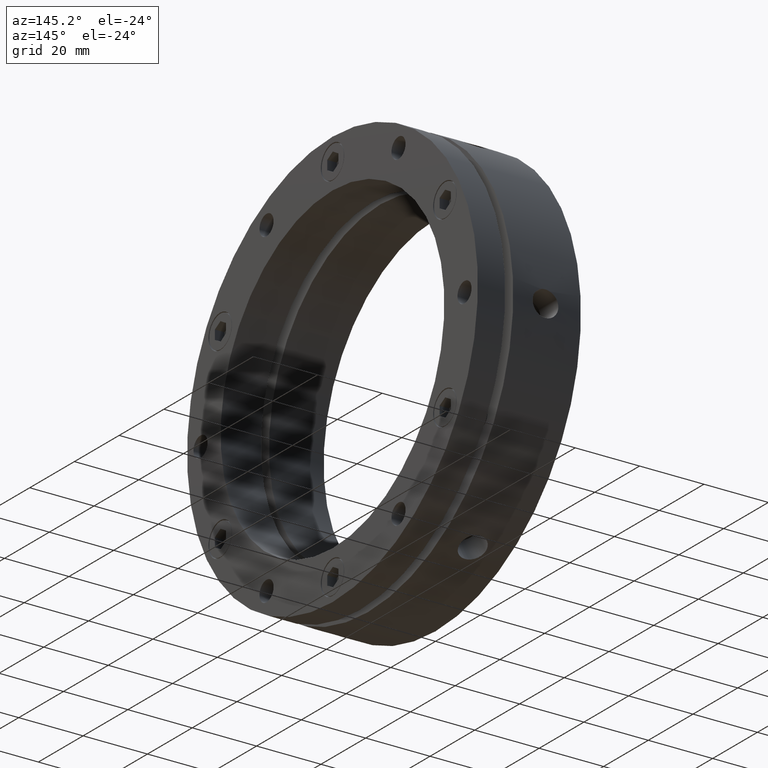
[diagram: clean part render]
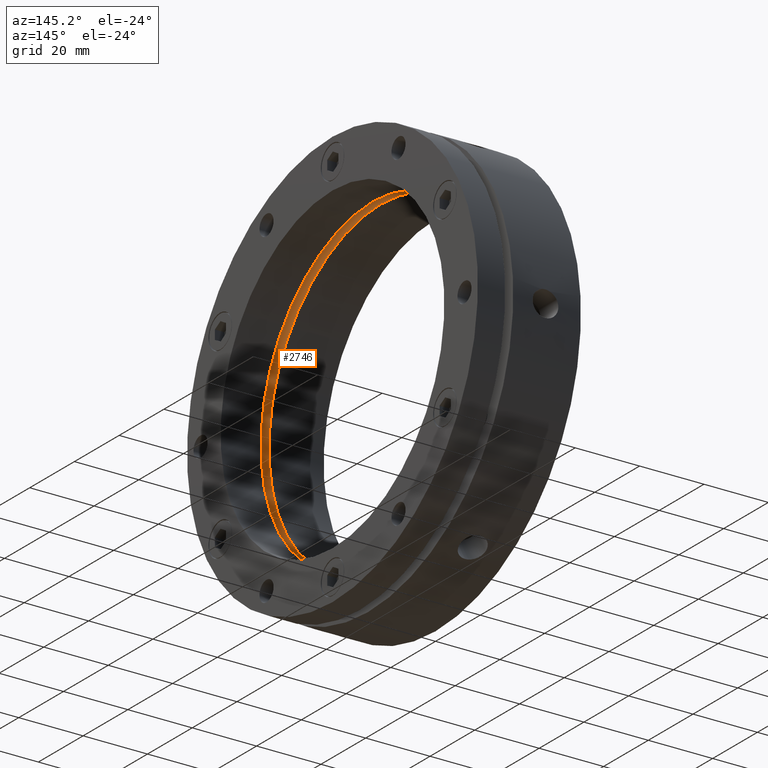
[diagram: same view with one face highlighted and labeled with its STEP entity id]
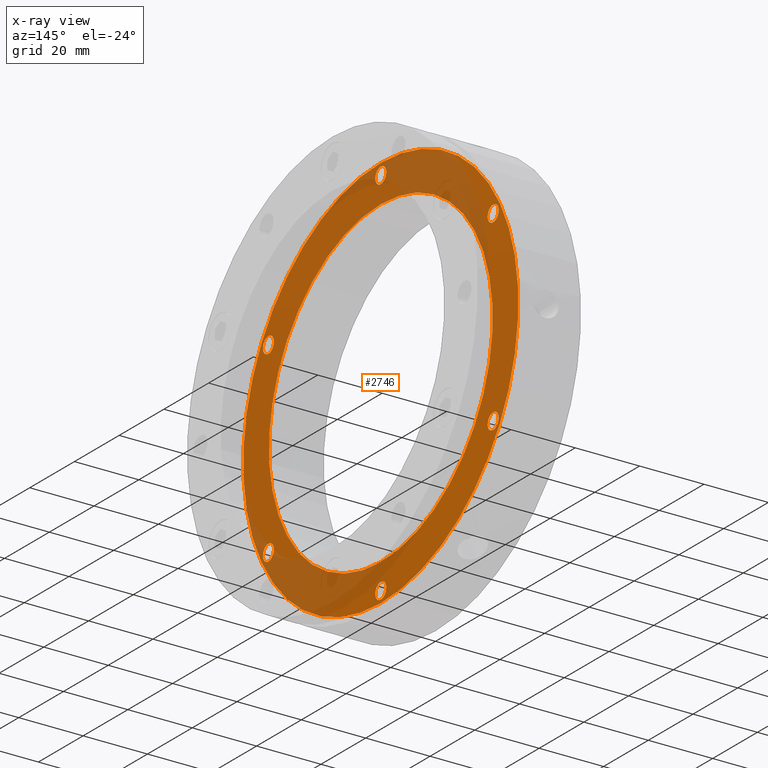
[diagram: x-ray of the same camera — body ghosted, the highlighted face saturated]
A machine part, auxiliary view. The second image highlights one B-rep face of the part: STEP entity #2746.
The next image is the same camera in x-ray: the body ghosted, the highlighted face saturated — about 30% of this face is hidden behind the body in this view.
In plain terms, the highlighted planar face has unit normal (-1, 0, 0).
Its self-contained STEP definition (entity closure, byte-faithful):
#138 = CIRCLE ( 'NONE', #4074, 2.458500000000002600 ) ;
#185 = VERTEX_POINT ( 'NONE', #4351 ) ;
#186 = VERTEX_POINT ( 'NONE', #4352 ) ;
#227 = VERTEX_POINT ( 'NONE', #4393 ) ;
#230 = VERTEX_POINT ( 'NONE', #4396 ) ;
#231 = VERTEX_POINT ( 'NONE', #4397 ) ;
#234 = VERTEX_POINT ( 'NONE', #4400 ) ;
#235 = VERTEX_POINT ( 'NONE', #4401 ) ;
#238 = VERTEX_POINT ( 'NONE', #4404 ) ;
#239 = VERTEX_POINT ( 'NONE', #4405 ) ;
#242 = VERTEX_POINT ( 'NONE', #4408 ) ;
#245 = VERTEX_POINT ( 'NONE', #4411 ) ;
#247 = VERTEX_POINT ( 'NONE', #4413 ) ;
#283 = VERTEX_POINT ( 'NONE', #4443 ) ;
#287 = VERTEX_POINT ( 'NONE', #4445 ) ;
#290 = VERTEX_POINT ( 'NONE', #4446 ) ;
#294 = VERTEX_POINT ( 'NONE', #4449 ) ;
#303 = CIRCLE ( 'NONE', #4094, 2.458499999999999000 ) ;
#308 = CIRCLE ( 'NONE', #4093, 2.458500000000002600 ) ;
#406 = EDGE_CURVE ( 'NONE', #186, #185, #3945, .T. ) ;
#453 = EDGE_CURVE ( 'NONE', #185, #186, #2889, .T. ) ;
#462 = EDGE_CURVE ( 'NONE', #287, #290, #2885, .T. ) ;
#464 = EDGE_CURVE ( 'NONE', #283, #247, #2879, .T. ) ;
#465 = EDGE_CURVE ( 'NONE', #245, #294, #2878, .T. ) ;
#466 = EDGE_CURVE ( 'NONE', #239, #242, #2877, .T. ) ;
#467 = EDGE_CURVE ( 'NONE', #235, #238, #2876, .T. ) ;
#468 = EDGE_CURVE ( 'NONE', #231, #234, #2875, .T. ) ;
#469 = EDGE_CURVE ( 'NONE', #227, #230, #2874, .T. ) ;
#647 = CARTESIAN_POINT ( 'NONE',  ( 16.99999999999999300, 0.0000000000000000000, 0.0000000000000000000 ) ) ;
#648 = DIRECTION ( 'NONE',  ( -1.000000000000000000, 0.0000000000000000000, 0.0000000000000000000 ) ) ;
#649 = DIRECTION ( 'NONE',  ( 0.0000000000000000000, 0.0000000000000000000, 1.000000000000000000 ) ) ;
#768 = CARTESIAN_POINT ( 'NONE',  ( 16.99999999999999300, 0.0000000000000000000, 0.0000000000000000000 ) ) ;
#769 = DIRECTION ( 'NONE',  ( -1.000000000000000000, 0.0000000000000000000, 0.0000000000000000000 ) ) ;
#770 = DIRECTION ( 'NONE',  ( 0.0000000000000000000, 0.0000000000000000000, 1.000000000000000000 ) ) ;
#795 = CARTESIAN_POINT ( 'NONE',  ( 17.00000000000000700, 0.0000000000000000000, 0.0000000000000000000 ) ) ;
#796 = DIRECTION ( 'NONE',  ( -1.000000000000000000, -0.0000000000000000000, -0.0000000000000000000 ) ) ;
#797 = DIRECTION ( 'NONE',  ( 0.0000000000000000000, 0.0000000000000000000, -1.000000000000000000 ) ) ;
#801 = CARTESIAN_POINT ( 'NONE',  ( 17.00000000000000700, 0.0000000000000000000, 58.00000000000002800 ) ) ;
#802 = DIRECTION ( 'NONE',  ( -1.000000000000000000, 0.0000000000000000000, 0.0000000000000000000 ) ) ;
#803 = DIRECTION ( 'NONE',  ( 0.0000000000000000000, 0.0000000000000000000, 1.000000000000000000 ) ) ;
#804 = CARTESIAN_POINT ( 'NONE',  ( 17.00000000000000700, -50.22947341949745900, 29.00000000000001800 ) ) ;
#805 = DIRECTION ( 'NONE',  ( -1.000000000000000000, 0.0000000000000000000, 0.0000000000000000000 ) ) ;
#806 = DIRECTION ( 'NONE',  ( 0.0000000000000000000, 0.0000000000000000000, 1.000000000000000000 ) ) ;
#807 = CARTESIAN_POINT ( 'NONE',  ( 17.00000000000000700, -50.22947341949746700, -29.00000000000000400 ) ) ;
#808 = DIRECTION ( 'NONE',  ( -1.000000000000000000, 0.0000000000000000000, 0.0000000000000000000 ) ) ;
#809 = DIRECTION ( 'NONE',  ( 0.0000000000000000000, 0.0000000000000000000, 1.000000000000000000 ) ) ;
#810 = CARTESIAN_POINT ( 'NONE',  ( 17.00000000000000700, -8.881783999999999800E-015, -58.00000000000003600 ) ) ;
#811 = DIRECTION ( 'NONE',  ( -1.000000000000000000, 0.0000000000000000000, 0.0000000000000000000 ) ) ;
#812 = DIRECTION ( 'NONE',  ( 0.0000000000000000000, 0.0000000000000000000, 1.000000000000000000 ) ) ;
#813 = CARTESIAN_POINT ( 'NONE',  ( 17.00000000000000700, 50.22947341949745200, -29.00000000000003600 ) ) ;
#814 = DIRECTION ( 'NONE',  ( -1.000000000000000000, 0.0000000000000000000, 0.0000000000000000000 ) ) ;
#815 = DIRECTION ( 'NONE',  ( 0.0000000000000000000, 0.0000000000000000000, 1.000000000000000000 ) ) ;
#816 = CARTESIAN_POINT ( 'NONE',  ( 17.00000000000000700, 50.22947341949748800, 28.99999999999997200 ) ) ;
#817 = DIRECTION ( 'NONE',  ( -1.000000000000000000, 0.0000000000000000000, 0.0000000000000000000 ) ) ;
#818 = DIRECTION ( 'NONE',  ( 0.0000000000000000000, 0.0000000000000000000, 1.000000000000000000 ) ) ;
#1335 = CARTESIAN_POINT ( 'NONE',  ( 17.00000000000000700, 50.22947341949745200, -29.00000000000003600 ) ) ;
#1336 = DIRECTION ( 'NONE',  ( -1.000000000000000000, 0.0000000000000000000, 0.0000000000000000000 ) ) ;
#1337 = DIRECTION ( 'NONE',  ( 0.0000000000000000000, 0.0000000000000000000, 1.000000000000000000 ) ) ;
#1341 = CARTESIAN_POINT ( 'NONE',  ( 17.00000000000000700, 0.0000000000000000000, 58.00000000000002800 ) ) ;
#1342 = DIRECTION ( 'NONE',  ( -1.000000000000000000, 0.0000000000000000000, 0.0000000000000000000 ) ) ;
#1343 = DIRECTION ( 'NONE',  ( 0.0000000000000000000, 0.0000000000000000000, 1.000000000000000000 ) ) ;
#1355 = CARTESIAN_POINT ( 'NONE',  ( 17.00000000000000700, 0.0000000000000000000, 0.0000000000000000000 ) ) ;
#1356 = DIRECTION ( 'NONE',  ( -1.000000000000000000, -0.0000000000000000000, -0.0000000000000000000 ) ) ;
#1357 = DIRECTION ( 'NONE',  ( 0.0000000000000000000, 0.0000000000000000000, -1.000000000000000000 ) ) ;
#1362 = CARTESIAN_POINT ( 'NONE',  ( 17.00000000000000700, -50.22947341949745900, 29.00000000000001800 ) ) ;
#1363 = DIRECTION ( 'NONE',  ( -1.000000000000000000, 0.0000000000000000000, 0.0000000000000000000 ) ) ;
#1364 = DIRECTION ( 'NONE',  ( 0.0000000000000000000, 0.0000000000000000000, 1.000000000000000000 ) ) ;
#1372 = CARTESIAN_POINT ( 'NONE',  ( 17.00000000000000700, -50.22947341949746700, -29.00000000000000400 ) ) ;
#1373 = DIRECTION ( 'NONE',  ( -1.000000000000000000, 0.0000000000000000000, 0.0000000000000000000 ) ) ;
#1374 = DIRECTION ( 'NONE',  ( 0.0000000000000000000, 0.0000000000000000000, 1.000000000000000000 ) ) ;
#1425 = CARTESIAN_POINT ( 'NONE',  ( 17.00000000000000700, -8.881783999999999800E-015, -58.00000000000003600 ) ) ;
#1426 = DIRECTION ( 'NONE',  ( -1.000000000000000000, 0.0000000000000000000, 0.0000000000000000000 ) ) ;
#1427 = DIRECTION ( 'NONE',  ( 0.0000000000000000000, 0.0000000000000000000, 1.000000000000000000 ) ) ;
#1462 = CARTESIAN_POINT ( 'NONE',  ( 17.00000000000000700, 50.22947341949748800, 28.99999999999997200 ) ) ;
#1463 = DIRECTION ( 'NONE',  ( -1.000000000000000000, 0.0000000000000000000, 0.0000000000000000000 ) ) ;
#1464 = DIRECTION ( 'NONE',  ( 0.0000000000000000000, 0.0000000000000000000, 1.000000000000000000 ) ) ;
#2143 = DIRECTION ( 'NONE',  ( -1.000000000000000000, 0.0000000000000000000, 0.0000000000000000000 ) ) ;
#2145 = CARTESIAN_POINT ( 'NONE',  ( 17.00000000000000700, 30.75000000000000000, 0.0000000000000000000 ) ) ;
#2147 = PLANE ( 'NONE',  #3780 ) ;
#2149 = DIRECTION ( 'NONE',  ( 0.0000000000000000000, 0.0000000000000000000, 1.000000000000000000 ) ) ;
#2598 = FACE_BOUND ( 'NONE', #3377, .T. ) ;
#2600 = FACE_BOUND ( 'NONE', #3429, .T. ) ;
#2602 = FACE_BOUND ( 'NONE', #3383, .T. ) ;
#2604 = FACE_BOUND ( 'NONE', #3370, .T. ) ;
#2606 = FACE_BOUND ( 'NONE', #3375, .T. ) ;
#2608 = FACE_BOUND ( 'NONE', #3418, .T. ) ;
#2610 = FACE_BOUND ( 'NONE', #3385, .T. ) ;
#2611 = FACE_OUTER_BOUND ( 'NONE', #3380, .T. ) ;
#2746 = ADVANCED_FACE ( 'NONE', ( #2598, #2606, #2600, #2604, #2602, #2608, #2610, #2611 ), #2147, .F. ) ;
#2874 = CIRCLE ( 'NONE', #4168, 2.458500000000002600 ) ;
#2875 = CIRCLE ( 'NONE', #4169, 2.458499999999999000 ) ;
#2876 = CIRCLE ( 'NONE', #4170, 2.458500000000002600 ) ;
#2877 = CIRCLE ( 'NONE', #4171, 2.458499999999999000 ) ;
#2878 = CIRCLE ( 'NONE', #4172, 2.458500000000002600 ) ;
#2879 = CIRCLE ( 'NONE', #4173, 2.458500000000002600 ) ;
#2885 = CIRCLE ( 'NONE', #4175, 50.00000000000000000 ) ;
#2889 = CIRCLE ( 'NONE', #4184, 61.50000000000000000 ) ;
#3370 = EDGE_LOOP ( 'NONE', ( #3655, #3654 ) ) ;
#3375 = EDGE_LOOP ( 'NONE', ( #3659, #3658 ) ) ;
#3377 = EDGE_LOOP ( 'NONE', ( #3661, #3660 ) ) ;
#3380 = EDGE_LOOP ( 'NONE', ( #3647, #3646 ) ) ;
#3383 = EDGE_LOOP ( 'NONE', ( #3653, #3652 ) ) ;
#3385 = EDGE_LOOP ( 'NONE', ( #3649, #3648 ) ) ;
#3418 = EDGE_LOOP ( 'NONE', ( #3651, #3650 ) ) ;
#3429 = EDGE_LOOP ( 'NONE', ( #3657, #3656 ) ) ;
#3466 = CIRCLE ( 'NONE', #4077, 2.458500000000002600 ) ;
#3499 = CIRCLE ( 'NONE', #4087, 2.458499999999999000 ) ;
#3504 = CIRCLE ( 'NONE', #4089, 2.458500000000002600 ) ;
#3505 = CIRCLE ( 'NONE', #4090, 50.00000000000000000 ) ;
#3646 = ORIENTED_EDGE ( 'NONE', *, *, #406, .F. ) ;
#3647 = ORIENTED_EDGE ( 'NONE', *, *, #453, .F. ) ;
#3648 = ORIENTED_EDGE ( 'NONE', *, *, #4286, .T. ) ;
#3649 = ORIENTED_EDGE ( 'NONE', *, *, #469, .T. ) ;
#3650 = ORIENTED_EDGE ( 'NONE', *, *, #4232, .T. ) ;
#3651 = ORIENTED_EDGE ( 'NONE', *, *, #468, .T. ) ;
#3652 = ORIENTED_EDGE ( 'NONE', *, *, #4268, .T. ) ;
#3653 = ORIENTED_EDGE ( 'NONE', *, *, #467, .T. ) ;
#3654 = ORIENTED_EDGE ( 'NONE', *, *, #4247, .T. ) ;
#3655 = ORIENTED_EDGE ( 'NONE', *, *, #466, .T. ) ;
#3656 = ORIENTED_EDGE ( 'NONE', *, *, #4243, .T. ) ;
#3657 = ORIENTED_EDGE ( 'NONE', *, *, #465, .T. ) ;
#3658 = ORIENTED_EDGE ( 'NONE', *, *, #4235, .T. ) ;
#3659 = ORIENTED_EDGE ( 'NONE', *, *, #464, .T. ) ;
#3660 = ORIENTED_EDGE ( 'NONE', *, *, #462, .T. ) ;
#3661 = ORIENTED_EDGE ( 'NONE', *, *, #4240, .T. ) ;
#3780 = AXIS2_PLACEMENT_3D ( 'NONE', #2145, #2143, #2149 ) ;
#3945 = CIRCLE ( 'NONE', #4215, 61.50000000000000000 ) ;
#4074 = AXIS2_PLACEMENT_3D ( 'NONE', #1462, #1463, #1464 ) ;
#4077 = AXIS2_PLACEMENT_3D ( 'NONE', #1425, #1426, #1427 ) ;
#4087 = AXIS2_PLACEMENT_3D ( 'NONE', #1372, #1373, #1374 ) ;
#4089 = AXIS2_PLACEMENT_3D ( 'NONE', #1362, #1363, #1364 ) ;
#4090 = AXIS2_PLACEMENT_3D ( 'NONE', #1355, #1356, #1357 ) ;
#4093 = AXIS2_PLACEMENT_3D ( 'NONE', #1341, #1342, #1343 ) ;
#4094 = AXIS2_PLACEMENT_3D ( 'NONE', #1335, #1336, #1337 ) ;
#4168 = AXIS2_PLACEMENT_3D ( 'NONE', #816, #817, #818 ) ;
#4169 = AXIS2_PLACEMENT_3D ( 'NONE', #813, #814, #815 ) ;
#4170 = AXIS2_PLACEMENT_3D ( 'NONE', #810, #811, #812 ) ;
#4171 = AXIS2_PLACEMENT_3D ( 'NONE', #807, #808, #809 ) ;
#4172 = AXIS2_PLACEMENT_3D ( 'NONE', #804, #805, #806 ) ;
#4173 = AXIS2_PLACEMENT_3D ( 'NONE', #801, #802, #803 ) ;
#4175 = AXIS2_PLACEMENT_3D ( 'NONE', #795, #796, #797 ) ;
#4184 = AXIS2_PLACEMENT_3D ( 'NONE', #768, #769, #770 ) ;
#4215 = AXIS2_PLACEMENT_3D ( 'NONE', #647, #648, #649 ) ;
#4232 = EDGE_CURVE ( 'NONE', #234, #231, #303, .T. ) ;
#4235 = EDGE_CURVE ( 'NONE', #247, #283, #308, .T. ) ;
#4240 = EDGE_CURVE ( 'NONE', #290, #287, #3505, .T. ) ;
#4243 = EDGE_CURVE ( 'NONE', #294, #245, #3504, .T. ) ;
#4247 = EDGE_CURVE ( 'NONE', #242, #239, #3499, .T. ) ;
#4268 = EDGE_CURVE ( 'NONE', #238, #235, #3466, .T. ) ;
#4286 = EDGE_CURVE ( 'NONE', #230, #227, #138, .T. ) ;
#4351 = CARTESIAN_POINT ( 'NONE',  ( 16.99999999999999300, 0.0000000000000000000, 61.50000000000000000 ) ) ;
#4352 = CARTESIAN_POINT ( 'NONE',  ( 16.99999999999999300, 7.531577814756222700E-015, -61.50000000000000000 ) ) ;
#4393 = CARTESIAN_POINT ( 'NONE',  ( 17.00000000000000700, 50.22947341949748800, 31.45849999999997200 ) ) ;
#4396 = CARTESIAN_POINT ( 'NONE',  ( 17.00000000000000700, 50.22947341949748800, 26.54149999999996700 ) ) ;
#4397 = CARTESIAN_POINT ( 'NONE',  ( 17.00000000000000700, 50.22947341949745200, -26.54150000000003800 ) ) ;
#4400 = CARTESIAN_POINT ( 'NONE',  ( 17.00000000000000700, 50.22947341949745200, -31.45850000000003600 ) ) ;
#4401 = CARTESIAN_POINT ( 'NONE',  ( 17.00000000000000700, -8.881783999999999800E-015, -55.54150000000003500 ) ) ;
#4404 = CARTESIAN_POINT ( 'NONE',  ( 17.00000000000000700, -8.580704584429623500E-015, -60.45850000000004300 ) ) ;
#4405 = CARTESIAN_POINT ( 'NONE',  ( 17.00000000000000700, -50.22947341949746700, -26.54150000000000600 ) ) ;
#4408 = CARTESIAN_POINT ( 'NONE',  ( 17.00000000000000700, -50.22947341949746700, -31.45850000000000800 ) ) ;
#4411 = CARTESIAN_POINT ( 'NONE',  ( 17.00000000000000700, -50.22947341949745900, 31.45850000000002200 ) ) ;
#4413 = CARTESIAN_POINT ( 'NONE',  ( 17.00000000000000700, 3.010794155703764200E-016, 55.54150000000002800 ) ) ;
#4443 = CARTESIAN_POINT ( 'NONE',  ( 17.00000000000000700, 0.0000000000000000000, 60.45850000000003600 ) ) ;
#4445 = CARTESIAN_POINT ( 'NONE',  ( 17.00000000000000700, 6.123233995736766100E-015, 50.00000000000000000 ) ) ;
#4446 = CARTESIAN_POINT ( 'NONE',  ( 17.00000000000000700, 0.0000000000000000000, -50.00000000000000000 ) ) ;
#4449 = CARTESIAN_POINT ( 'NONE',  ( 17.00000000000000700, -50.22947341949745900, 26.54150000000002100 ) ) ;